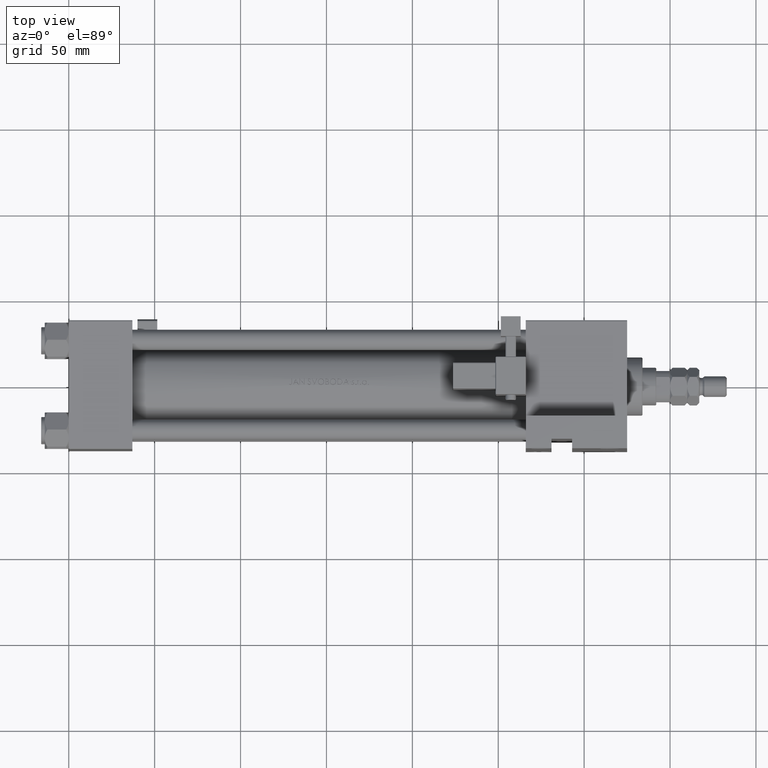
[diagram: clean part render]
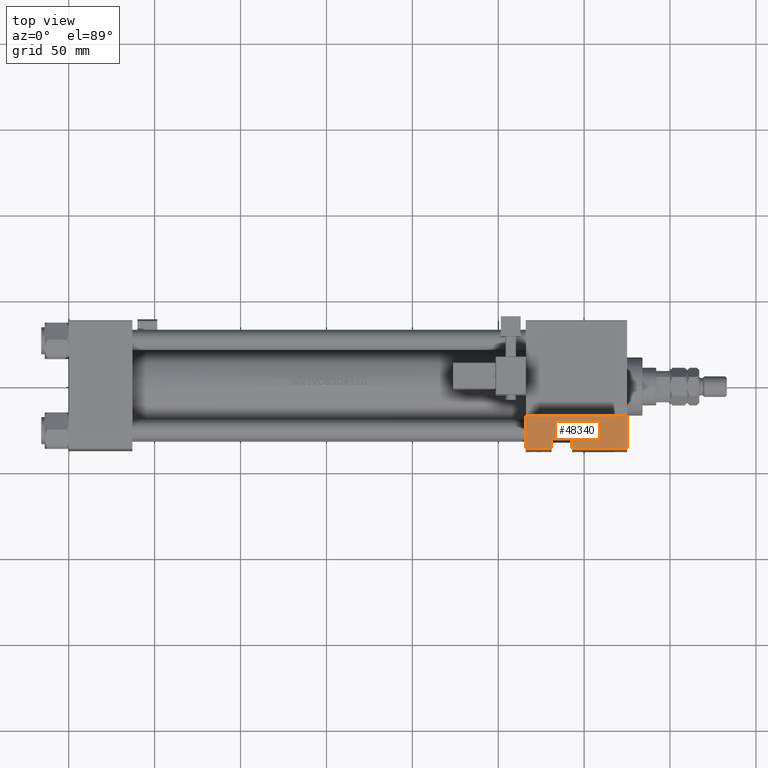
[diagram: same view with one face highlighted and labeled with its STEP entity id]
A machine part, top view. The second image highlights one B-rep face of the part: STEP entity #48340.
In plain terms, the highlighted planar face has unit normal (0, 0, 1).
Its self-contained STEP definition (entity closure, byte-faithful):
#681 = CARTESIAN_POINT ( 'NONE',  ( 266.0000000000000000, -63.50000000000002842, -18.50000000000000000 ) ) ;
#991 = CARTESIAN_POINT ( 'NONE',  ( 266.0000000000000000, -63.50000000000002842, -18.50000000000000000 ) ) ;
#1268 = VERTEX_POINT ( 'NONE', #50427 ) ;
#2751 = ORIENTED_EDGE ( 'NONE', *, *, #24174, .F. ) ;
#3396 = VECTOR ( 'NONE', #5160, 1000.000000000000000 ) ;
#5160 = DIRECTION ( 'NONE',  ( -0.000000000000000000, -0.000000000000000000, -1.000000000000000000 ) ) ;
#5691 = LINE ( 'NONE', #20779, #3396 ) ;
#5878 = DIRECTION ( 'NONE',  ( -1.000000000000000000, -0.000000000000000000, -0.000000000000000000 ) ) ;
#6500 = EDGE_CURVE ( 'NONE', #50295, #14152, #49389, .T. ) ;
#7707 = LINE ( 'NONE', #26688, #39974 ) ;
#10296 = CARTESIAN_POINT ( 'NONE',  ( 266.0000000000000000, -63.50000000000002842, -37.50000000000000000 ) ) ;
#10709 = EDGE_CURVE ( 'NONE', #40461, #37622, #50303, .T. ) ;
#11736 = VECTOR ( 'NONE', #45688, 1000.000000000000000 ) ;
#13565 = ORIENTED_EDGE ( 'NONE', *, *, #33863, .F. ) ;
#14152 = VERTEX_POINT ( 'NONE', #33896 ) ;
#15310 = ORIENTED_EDGE ( 'NONE', *, *, #10709, .F. ) ;
#16024 = CARTESIAN_POINT ( 'NONE',  ( 293.0000000000000000, -63.49999999999998579, -37.50000000000000000 ) ) ;
#16959 = VECTOR ( 'NONE', #5878, 1000.000000000000000 ) ;
#18082 = AXIS2_PLACEMENT_3D ( 'NONE', #42217, #22975, #50267 ) ;
#19201 = CARTESIAN_POINT ( 'NONE',  ( 325.0000000000000000, -63.50000000000002842, -37.50000000000000000 ) ) ;
#20779 = CARTESIAN_POINT ( 'NONE',  ( 293.0000000000000000, -63.49999999999998579, -32.00000000000000000 ) ) ;
#21257 = LINE ( 'NONE', #37377, #11736 ) ;
#22975 = DIRECTION ( 'NONE',  ( 0.000000000000000000, -1.000000000000000000, 0.000000000000000000 ) ) ;
#23541 = EDGE_LOOP ( 'NONE', ( #32409, #30184, #2751, #41986, #28601, #13565, #51289, #15310 ) ) ;
#24067 = EDGE_CURVE ( 'NONE', #25286, #50295, #28531, .T. ) ;
#24174 = EDGE_CURVE ( 'NONE', #25286, #40172, #21257, .T. ) ;
#24220 = EDGE_CURVE ( 'NONE', #37622, #1268, #7707, .T. ) ;
#25286 = VERTEX_POINT ( 'NONE', #42495 ) ;
#26155 = CARTESIAN_POINT ( 'NONE',  ( 266.0000000000000000, -63.50000000000002842, -37.50000000000000000 ) ) ;
#26354 = FACE_OUTER_BOUND ( 'NONE', #23541, .T. ) ;
#26688 = CARTESIAN_POINT ( 'NONE',  ( 281.0000000000000000, -63.49999999999998579, -32.00000000000000000 ) ) ;
#26918 = EDGE_CURVE ( 'NONE', #40461, #36426, #5691, .T. ) ;
#27204 = DIRECTION ( 'NONE',  ( -0.000000000000000000, -0.000000000000000000, -1.000000000000000000 ) ) ;
#28531 = LINE ( 'NONE', #991, #44906 ) ;
#28601 = ORIENTED_EDGE ( 'NONE', *, *, #6500, .T. ) ;
#30184 = ORIENTED_EDGE ( 'NONE', *, *, #47069, .F. ) ;
#32409 = ORIENTED_EDGE ( 'NONE', *, *, #26918, .T. ) ;
#32448 = DIRECTION ( 'NONE',  ( -1.000000000000000000, -0.000000000000000000, -0.000000000000000000 ) ) ;
#33531 = DIRECTION ( 'NONE',  ( 0.000000000000000000, 0.000000000000000000, -1.000000000000000000 ) ) ;
#33863 = EDGE_CURVE ( 'NONE', #1268, #14152, #49559, .T. ) ;
#33896 = CARTESIAN_POINT ( 'NONE',  ( 266.0000000000000000, -63.50000000000002842, -37.50000000000000000 ) ) ;
#33919 = PLANE ( 'NONE',  #18082 ) ;
#36426 = VERTEX_POINT ( 'NONE', #16024 ) ;
#37377 = CARTESIAN_POINT ( 'NONE',  ( 325.0000000000000000, -63.50000000000002842, -18.50000000000000000 ) ) ;
#37622 = VERTEX_POINT ( 'NONE', #45513 ) ;
#39974 = VECTOR ( 'NONE', #27204, 1000.000000000000000 ) ;
#40172 = VERTEX_POINT ( 'NONE', #19201 ) ;
#40461 = VERTEX_POINT ( 'NONE', #42025 ) ;
#41986 = ORIENTED_EDGE ( 'NONE', *, *, #24067, .T. ) ;
#42025 = CARTESIAN_POINT ( 'NONE',  ( 292.9999999999999432, -63.50000000000002842, -32.00000000000000000 ) ) ;
#42217 = CARTESIAN_POINT ( 'NONE',  ( 266.0000000000000000, -63.50000000000002842, -18.50000000000000000 ) ) ;
#42280 = LINE ( 'NONE', #10296, #51362 ) ;
#42495 = CARTESIAN_POINT ( 'NONE',  ( 325.0000000000000000, -63.50000000000002842, -18.50000000000000000 ) ) ;
#42791 = DIRECTION ( 'NONE',  ( -1.000000000000000000, -0.000000000000000000, -0.000000000000000000 ) ) ;
#44906 = VECTOR ( 'NONE', #32448, 1000.000000000000000 ) ;
#45513 = CARTESIAN_POINT ( 'NONE',  ( 281.0000000000000000, -63.49999999999998579, -32.00000000000000000 ) ) ;
#45688 = DIRECTION ( 'NONE',  ( 0.000000000000000000, 0.000000000000000000, -1.000000000000000000 ) ) ;
#46417 = CARTESIAN_POINT ( 'NONE',  ( 281.0000000000000000, -63.49999999999998579, -32.00000000000000000 ) ) ;
#46867 = VECTOR ( 'NONE', #49544, 1000.000000000000000 ) ;
#47069 = EDGE_CURVE ( 'NONE', #40172, #36426, #42280, .T. ) ;
#48121 = VECTOR ( 'NONE', #33531, 1000.000000000000000 ) ;
#48340 = ADVANCED_FACE ( 'NONE', ( #26354 ), #33919, .T. ) ;
#49389 = LINE ( 'NONE', #49647, #48121 ) ;
#49544 = DIRECTION ( 'NONE',  ( -1.000000000000000000, -0.000000000000000000, -0.000000000000000000 ) ) ;
#49559 = LINE ( 'NONE', #26155, #16959 ) ;
#49647 = CARTESIAN_POINT ( 'NONE',  ( 266.0000000000000000, -63.50000000000002842, -18.50000000000000000 ) ) ;
#50267 = DIRECTION ( 'NONE',  ( 0.000000000000000000, -0.000000000000000000, -1.000000000000000000 ) ) ;
#50295 = VERTEX_POINT ( 'NONE', #681 ) ;
#50303 = LINE ( 'NONE', #46417, #46867 ) ;
#50427 = CARTESIAN_POINT ( 'NONE',  ( 281.0000000000000000, -63.49999999999998579, -37.50000000000000000 ) ) ;
#51289 = ORIENTED_EDGE ( 'NONE', *, *, #24220, .F. ) ;
#51362 = VECTOR ( 'NONE', #42791, 1000.000000000000000 ) ;